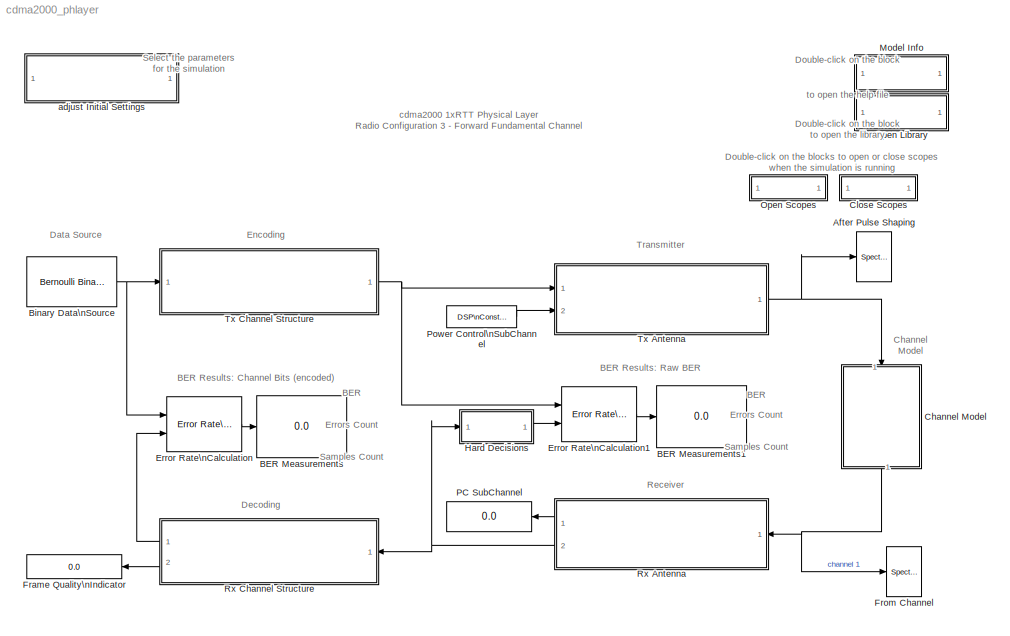
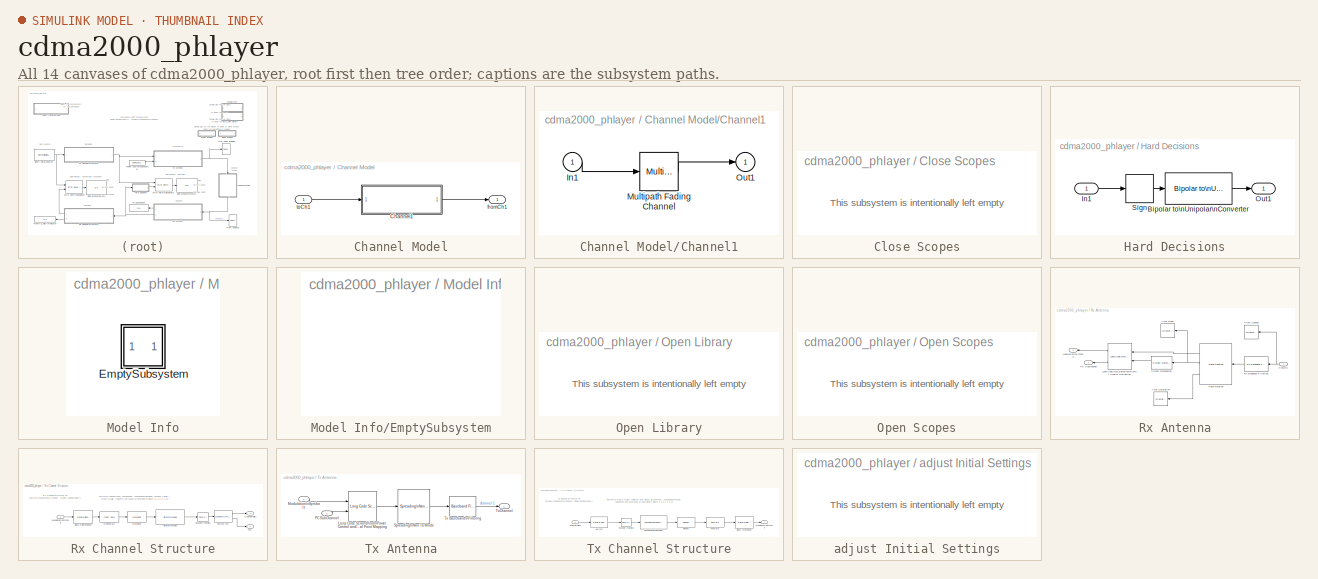
[diagram: thumbnail index - all 14 canvases of the model, root first then tree order]
MODEL cdma2000_phlayer
KIND model
CONFIG PreLoadFcn = % Create interleaver table\n% By default, numSampInt is set to 768 and radConfig to 3\ninterTable = cdma2000_inttable(768, 3);\n
BLOCK [Reference] After Pulse Shaping  REF=dspsnks4/Spectrum\nScope
  AxisGrid = on
  AxisLegend = off
  AxisProperties = off
  AxisZoom = off
  BufferSize = 256
  DisplayProperties = on
  Domain = Frequency
  FFTlength = 128
  FigPos = figposition([7    12    39    27])
  FrameNumber = off
  HorizSpan = 1
  InheritXIncr = on
  LineColors = [1 0 0]
  LineProperties = off
  Memory = off
  OpenScopeAtSimStart = off
  OpenScopeImmediately = off
  Overlap = 0
  Ports = [1]
  ScopeProperties = off
  ShowPortLabels = off
  SourceBlock = dspsnks4/Spectrum\nScope
  SourceType = Spectrum Scope
  UseBuffer = on
  XIncr = 1.0
  XLabel = Samples
  XRange = [-Fs/2...Fs/2]
  XUnits = Hertz
  YLabel = Magnitude, dB
  YMax = 14.9570095672604
  YMin = -50.9192306956859
  YUnits = dB
  inpFftLenInherit = off
  numAvg = 20
BLOCK [Display] BER Measurements
  Decimation = 1
  Ports = [1]
BLOCK [Display] BER Measurements1
  Decimation = 1
  Ports = [1]
BLOCK [Reference] Binary Data\nSource  REF=commrandsrc2/Bernoulli Binary\nGenerator
  AttributesFormatString = Samples per Frame = %<sampPerFrame>\\nSample Time = %<Ts>
  P = 0.5
  Ports = [0, 1]
  ShowPortLabels = on
  SourceBlock = commrandsrc2/Bernoulli Binary\nGenerator
  SourceType = Bernoulli Binary Generator
  Ts = 20e-3*1/172
  frameBased = on
  orient = off
  sampPerFrame = 172
  seed = 1234
BLOCK [SubSystem] Channel Model
  MaskDisplay = disp('Channel\\nModels');
  MaskIconFrame = on
  MaskIconOpaque = on
  MaskIconRotate = none
  MaskIconUnits = autoscale
  MinAlgLoopOccurrences = off
  Ports = [1, 1]
  PropExecContextAcrossSSBoundary = on
  RTWSystemCode = Auto
  TreatAsAtomicUnit = off
BLOCK [SubSystem] Channel Model/Channel1
  AttributesFormatString = %<BlockChoice>
  BlockChoice = Multipath Fading Channel
  MemberBlocks = AWGN Channel,Multipath Fading Channel,No Channel
  MinAlgLoopOccurrences = off
  Ports = [1, 1]
  PropExecContextAcrossSSBoundary = on
  RTWSystemCode = Auto
  TemplateBlock = cdma2000_lib/cdma2000 Channel Models/Configurable\nSubsystem
  TreatAsAtomicUnit = off
BLOCK [Inport] Channel Model/Channel1/In1
  IconDisplay = Port number
  LatchInput = off
BLOCK [Reference] Channel Model/Channel1/Multipath Fading Channel  REF=cdma2000_lib/cdma2000 Channel Models/Multipath Fading Channel  (lib defined in mdl_ef6182a08372)
  EcN0 = 10
  Ports = [1, 1]
  ShowPortLabels = on
  SourceBlock = cdma2000_lib/cdma2000 Channel Models/Multipath Fading Channel
  SourceType = cdma2000 Channel model: Multipath Fading Channel
  delayVector = [0    2.6e-007   5.21e-007   7.81e-007]
  dopplerFreq = 486
  gainVector = [0 -3 -6 -9]
BLOCK [Outport] Channel Model/Channel1/Out1
  BusOutputAsStruct = off
  IconDisplay = Port number
BLOCK [Outport] Channel Model/fromCh1
  BusOutputAsStruct = off
  IconDisplay = Port number
BLOCK [Inport] Channel Model/toCh1
  IconDisplay = Port number
  LatchInput = off
BLOCK [SubSystem] Close Scopes
  MaskDisplay = disp('Close Scopes');
  MaskIconFrame = on
  MaskIconOpaque = on
  MaskIconRotate = none
  MaskIconUnits = autoscale
  MinAlgLoopOccurrences = off
  OpenFcn = str1 = 'Rx Antenna';                                                                           \nstr2 = 'From Channel';                                                                         \nstr3 = 'After Rake';                                                                           \nstr5 = 'After Derotation';                                        str6 = 'After Pulse Shaping';\nstr7 = 'From...<+764ch>
  Ports = []
  PropExecContextAcrossSSBoundary = on
  RTWSystemCode = Auto
  TreatAsAtomicUnit = off
BLOCK [Reference] Error Rate\nCalculation  REF=commsink2/Error Rate\nCalculation
  AttributesFormatString = Received Delay = %<N>
  N = 2*172
  PMode = Port
  Ports = [2, 1]
  RsMode2 = off
  SourceBlock = commsink2/Error Rate\nCalculation
  SourceType = Error Rate Calculation
  WsName = ErrorVec
  cp_mode = Entire frame
  maxBits = 1e6
  numErr = 100
  st_delay = 0
  stop = off
  subframe = []
BLOCK [Reference] Error Rate\nCalculation1  REF=commsink2/Error Rate\nCalculation
  AttributesFormatString = Received Delay = %<N>
  N = 2*768
  PMode = Port
  Ports = [2, 1]
  RsMode2 = off
  SourceBlock = commsink2/Error Rate\nCalculation
  SourceType = Error Rate Calculation
  WsName = ErrorVec
  cp_mode = Entire frame
  maxBits = 1e6
  numErr = 100
  st_delay = 0
  stop = off
  subframe = []
BLOCK [Display] Frame Quality\nIndicator
  Decimation = 1
  Ports = [1]
BLOCK [Reference] From Channel  REF=dspsnks4/Spectrum\nScope
  AxisGrid = on
  AxisLegend = off
  AxisProperties = off
  AxisZoom = off
  BufferSize = 512
  DisplayProperties = on
  Domain = Frequency
  FFTlength = 128
  FigPos = figposition([49    12    39    27])
  FrameNumber = off
  HorizSpan = 1
  InheritXIncr = on
  LineColors = [1 0 0]
  LineProperties = off
  Memory = off
  OpenScopeAtSimStart = off
  OpenScopeImmediately = off
  Overlap = 0
  Ports = [1]
  ScopeProperties = off
  ShowPortLabels = off
  SourceBlock = dspsnks4/Spectrum\nScope
  SourceType = Spectrum Scope
  UseBuffer = on
  XIncr = 1.0
  XLabel = Samples
  XRange = [-Fs/2...Fs/2]
  XUnits = Hertz
  YLabel = Magnitude, dB
  YMax = 21.0980719822277
  YMin = -25.3833693734741
  YUnits = dB
  inpFftLenInherit = off
  numAvg = 2
BLOCK [SubSystem] Hard Decisions
  MaskDisplay = disp('Hard\\nDecisions');
  MaskIconFrame = on
  MaskIconOpaque = on
  MaskIconRotate = none
  MaskIconUnits = autoscale
  MinAlgLoopOccurrences = off
  Ports = [1, 1]
  PropExecContextAcrossSSBoundary = on
  RTWSystemCode = Auto
  TreatAsAtomicUnit = off
BLOCK [Reference] Hard Decisions/Bipolar to\nUnipolar\nConverter  REF=commutil2/Bipolar to\nUnipolar\nConverter
  M = 2
  Ports = [1, 1]
  ShowPortLabels = on
  SourceBlock = commutil2/Bipolar to\nUnipolar\nConverter
  SourceType = Bipolar to Unipolar Converter
  polarity = Negative
BLOCK [Inport] Hard Decisions/In1
  IconDisplay = Port number
  LatchInput = off
BLOCK [Outport] Hard Decisions/Out1
  BusOutputAsStruct = off
  IconDisplay = Port number
BLOCK [Signum] Hard Decisions/Sign
BLOCK [SubSystem] Model Info
  CopyFcn = slcm CopyBlock;
  DeleteFcn = slcm Cancel;
  InitFcn = slcm('UpdateAllCMBlocksInThisModelInit')
  LoadFcn = slcm LoadBlock;
  MaskCallbackString = ||||||||||||||||||||||||||||||
  MaskDescription = This block allows revision control information to be displayed within the model.
  MaskDisplay = text(str2num(LeftAlignmentValue), 0.5, MaskDisplayString, 'HorizontalAlignment', HorizontalTextAlignment)\n
  MaskEnableString = on,on,on,on,on,on,on,on,on,on,on,on,on,on,on,on,on,on,on,on,on,on,on,on,on,on,on,on,on,on,on
  MaskIconFrame = on
  MaskIconOpaque = on
  MaskIconRotate = none
  MaskIconUnits = normalized
  MaskPromptString = InitialSaveTempField|InitialBlockCM|BlockCM|Frame|SaveTempField|DisplayStringWithTags|MaskDisplayString|HorizontalTextAlignment|LeftAlignmentValue|SourceBlockDiagram|TagMaxNumber|CMTag1|CMTag2|CMTag3|CMTag4|CMTag5|CMTag6|CMTag7|CMTag8|CMTag9|CMTag10|CMTag11|CMTag12|CMTag13|CMTag14|CMTag15|CMTag16|CMTag17|CMTag18|CMTag19|CMTag20
  MaskSelfModifiable = on
  MaskStyleString = edit,edit,edit,edit,edit,edit,edit,edit,edit,edit,edit,edit,edit,edit,edit,edit,edit,edit,edit,edit,edit,edit,edit,edit,edit,edit,edit,edit,edit,edit,edit
  MaskTabNameString = ,,,,,,,,,,,,,,,,,,,,,,,,,,,,,,
  MaskToolTipString = on,on,on,on,on,on,on,on,on,on,on,on,on,on,on,on,on,on,on,on,on,on,on,on,on,on,on,on,on,on,on
  MaskTunableValueString = on,on,on,on,on,on,on,on,on,on,on,on,on,on,on,on,on,on,on,on,on,on,on,on,on,on,on,on,on,on,on
  MaskType = CMBlock
  MaskValueString = |None|None|on||Info|Info|Center|0.5|cdma2000_phlayer|20||||||||||||||||||||
  MaskVarAliasString = ,,,,,,,,,,,,,,,,,,,,,,,,,,,,,,
  MaskVariables = InitialSaveTempField=&1;InitialBlockCM=&2;BlockCM=&3;Frame=&4;SaveTempField=&5;DisplayStringWithTags=&6;MaskDisplayString=&7;HorizontalTextAlignment=&8;LeftAlignmentValue=&9;SourceBlockDiagram=&10;TagMaxNumber=@11;CMTag1=&12;CMTag2=&13;CMTag3=&14;CMTag4=&15;CMTag5=&16;CMTag6=&17;CMTag7=&18;CMTag8=&19;CMTag9=&20;CMTag10=&21;CMTag11=&22;CMTag12=&23;CMTag13=&24;CMTag14=&25;CMTag15=&26;CMTag16=&27;CMT...<+45ch>
  MaskVisibilityString = off,off,off,off,off,off,off,off,off,off,off,off,off,off,off,off,off,off,off,off,off,off,off,off,off,off,off,off,off,off,off
  MinAlgLoopOccurrences = off
  NameChangeFcn = slcm Rename;
  OpenFcn = commdemohelp;
  Ports = []
  PostSaveFcn = slcm('UpdateAllCMBlocksInThisModel')
  PropExecContextAcrossSSBoundary = on
  RTWSystemCode = Auto
  TreatAsAtomicUnit = off
BLOCK [SubSystem] Model Info/EmptySubsystem
  MinAlgLoopOccurrences = off
  Ports = []
  PropExecContextAcrossSSBoundary = on
  RTWSystemCode = Auto
  TreatAsAtomicUnit = off
BLOCK [SubSystem] Open Library
  MaskDisplay = disp('cdma2000\\nLibrary')
  MaskIconFrame = on
  MaskIconOpaque = on
  MaskIconRotate = none
  MaskIconUnits = autoscale
  MinAlgLoopOccurrences = off
  OpenFcn = open('cdma2000_lib.mdl');
  Ports = []
  PropExecContextAcrossSSBoundary = on
  RTWSystemCode = Auto
  ShowPortLabels = off
  TreatAsAtomicUnit = off
BLOCK [SubSystem] Open Scopes
  MaskDisplay = disp('Open Scopes');
  MaskIconFrame = on
  MaskIconOpaque = on
  MaskIconRotate = none
  MaskIconUnits = autoscale
  MinAlgLoopOccurrences = off
  OpenFcn = str1 = 'Rx Antenna';                                                      \nstr2 = 'From Channel';                                                    \nstr3 = 'After Rake';                                                      \nstr5 = 'After Derotation';                                                \nstr6 = 'After Pulse Shaping';                                             \nstr7 = 'From Channel...<+512ch>
  Ports = []
  PropExecContextAcrossSSBoundary = on
  RTWSystemCode = Auto
  TreatAsAtomicUnit = off
BLOCK [Display] PC SubChannel
  Decimation = 1
  Ports = [1]
BLOCK [Reference] Power Control\nSubChannel  REF=dspsrcs4/DSP\nConstant
  AttributesFormatString = <path>
  FramebasedOutput = on
  InterpretAs1D = off
  Ports = [0, 1]
  SampleMode = Discrete
  ShowPortLabels = on
  SourceBlock = dspsrcs4/DSP\nConstant
  SourceType = DSP Constant
  Ts = 20e-3/16
  Value = 1
  additionalParams = off
  allowOverrides = on
  continuousOutput = Sample-based
  dataType = Inherit from 'Constant value'
  discreteOutput = Frame-based
  fracBitsMode = Best precision
  framePeriod = 20e-3/16
  isSigned = on
  numFracBits = 15
  sampTime = 20e-3/16
  udDataType = sfix(16)
  wordLen = 16
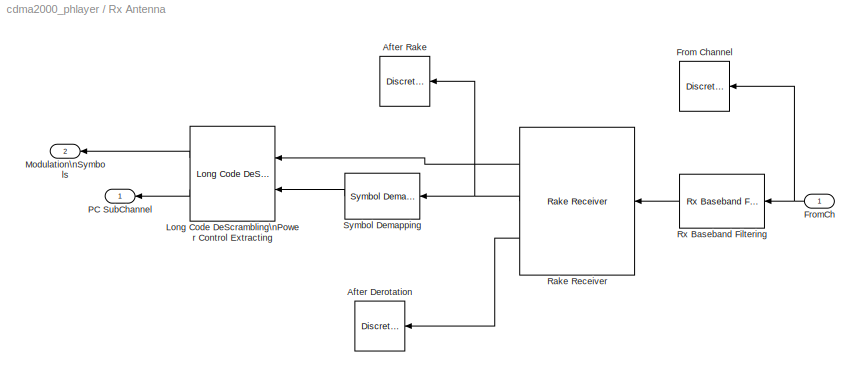
BLOCK [SubSystem] Rx Antenna
  MaskIconFrame = on
  MaskIconOpaque = on
  MaskIconRotate = none
  MaskIconUnits = autoscale
  MinAlgLoopOccurrences = off
  Ports = [1, 2]
  PropExecContextAcrossSSBoundary = on
  RTWSystemCode = Auto
  TreatAsAtomicUnit = off
BLOCK [Reference] Rx Antenna/After Derotation  REF=commsink2/Discrete-Time\nScatter Plot\nScope
  AxisGrid = on
  FigPos = figposition([36    51    30    40])
  FrameNumber = off
  LineColors = b
  LineMarkers = .
  Ports = [1]
  ShowPortLabels = on
  SourceBlock = commsink2/Discrete-Time\nScatter Plot\nScope
  SourceType = Discrete-Time Scatter Plot Scope
  Tag = ScatterPlot
  block_type_ = scatter
  fading = on
  figTitle = .
  inphaseLabel = After Derotation
  numLinesMax = 50
  numNewFrames = 20
  numTraces = 100
  offsetEye = 0
  openScopeAtSimStart = off
  render = off
  sampPerSymb = 1
  xMax = 3.46614847196624
  xMin = -3.22434444007457
  yMax = 3.37256952269922
  yMin = -3.31792338934159
BLOCK [Reference] Rx Antenna/After Rake  REF=commsink2/Discrete-Time\nScatter Plot\nScope
  AxisGrid = on
  FigPos = figposition([68    51    30    40])
  FrameNumber = off
  LineColors = [1 0 1]
  LineMarkers = .
  Ports = [1]
  ShowPortLabels = on
  SourceBlock = commsink2/Discrete-Time\nScatter Plot\nScope
  SourceType = Discrete-Time Scatter Plot Scope
  Tag = ScatterPlot
  block_type_ = scatter
  fading = on
  figTitle = .
  inphaseLabel = After Rake Receiver
  numLinesMax = 50
  numNewFrames = 40
  numTraces = 100
  offsetEye = 0
  openScopeAtSimStart = off
  render = off
  sampPerSymb = 1
  xMax = 2.7
  xMin = -2.7
  yMax = 2.7
  yMin = -2.7
BLOCK [Reference] Rx Antenna/From Channel  REF=commsink2/Discrete-Time\nScatter Plot\nScope
  AxisGrid = on
  FigPos = figposition([4    51    30    40])
  FrameNumber = off
  LineColors = [1 0 1]
  LineMarkers = .
  Ports = [1]
  ShowPortLabels = on
  SourceBlock = commsink2/Discrete-Time\nScatter Plot\nScope
  SourceType = Discrete-Time Scatter Plot Scope
  Tag = ScatterPlot
  block_type_ = scatter
  fading = on
  figTitle = .
  inphaseLabel = From Channel
  numLinesMax = 50
  numNewFrames = 2000
  numTraces = 3000
  offsetEye = 0
  openScopeAtSimStart = off
  render = off
  sampPerSymb = 1
  xMax = 2.7
  xMin = -2.7
  yMax = 2.7
  yMin = -2.7
BLOCK [Inport] Rx Antenna/FromCh
  IconDisplay = Port number
  LatchInput = off
BLOCK [Reference] Rx Antenna/Long Code DeScrambling\nPower Control Extracting  REF=cdma2000_lib/cdma2000 Receiver/Long Code DeScrambling\nPower Control Extracting  (lib defined in mdl_ef6182a08372)
  Ports = [2, 2]
  ShowPortLabels = on
  SourceBlock = cdma2000_lib/cdma2000 Receiver/Long Code DeScrambling\nPower Control Extracting
  SourceType = Long Code DeScrambling
  TxDivMode = Non-TD
  gateRateMask = 1/4
  longCScrMask = On
  nFrameMask = 1
  numSamp = 768
  plcMask = [1 1 0 0 0 1  1  0  0  1  1  0  1  0  1  1  1  1  0  1  1  0  0  1  0  1  1  1  0  0  1  0  1  0  1  1  1  1  0  1  1  0]
  radConfig = Radio Configuration 3
BLOCK [Outport] Rx Antenna/Modulation\nSymbols
  BusOutputAsStruct = off
  IconDisplay = Port number
  Port = 2
BLOCK [Outport] Rx Antenna/PC SubChannel
  BusOutputAsStruct = off
  IconDisplay = Port number
BLOCK [Reference] Rx Antenna/Rake Receiver  REF=cdma2000_lib/cdma2000 Receiver/Rake Receiver  (lib defined in mdl_ef6182a08372)
  Ports = [1, 3]
  ShowPortLabels = on
  SourceBlock = cdma2000_lib/cdma2000 Receiver/Rake Receiver
  SourceType = Rake Receiver
  fingerEnables = [1  1  1  1]
  fingerPhases = [0  1  3  4]
  numTapsChEst = 11
  numTapsRRC = 48
  overSampling = 4
  pnOffset = 1
  qof_idx = 2
  trChCode = 23
  walshLength = 64
BLOCK [Reference] Rx Antenna/Rx Baseband Filtering  REF=cdma2000_lib/cdma2000 Receiver/Rx Baseband Filtering  (lib defined in mdl_ef6182a08372)
  Ports = [1, 1]
  ShowPortLabels = on
  SourceBlock = cdma2000_lib/cdma2000 Receiver/Rx Baseband Filtering
  SourceType = Unknown
BLOCK [Reference] Rx Antenna/Symbol Demapping  REF=cdma2000_lib/cdma2000 Receiver/Symbol Demapping  (lib defined in mdl_ef6182a08372)
  Ports = [1, 1]
  ShowPortLabels = on
  SourceBlock = cdma2000_lib/cdma2000 Receiver/Symbol Demapping
  SourceType = Unknown
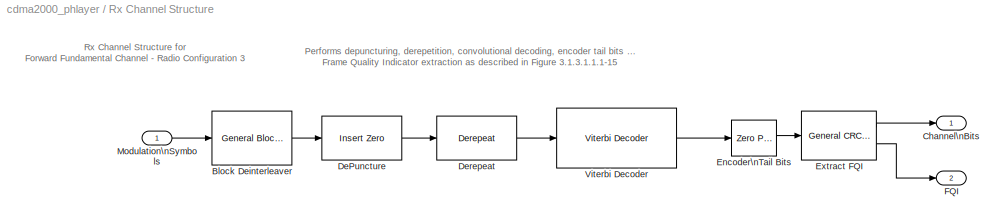
BLOCK [SubSystem] Rx Channel Structure
  MaskIconFrame = on
  MaskIconOpaque = on
  MaskIconRotate = none
  MaskIconUnits = autoscale
  MinAlgLoopOccurrences = off
  Ports = [1, 2]
  PropExecContextAcrossSSBoundary = on
  RTWSystemCode = Auto
  TreatAsAtomicUnit = off
BLOCK [Reference] Rx Channel Structure/Block Deinterleaver  REF=commblkintrlv2/General Block\nDeinterleaver
  Ports = [1, 1]
  SourceBlock = commblkintrlv2/General Block\nDeinterleaver
  SourceType = General Block Deinterleaver
  elements = interTable
BLOCK [Outport] Rx Channel Structure/Channel\nBits
  BusOutputAsStruct = off
  IconDisplay = Port number
BLOCK [Reference] Rx Channel Structure/DePuncture  REF=commsequence2/Insert Zero
  Ports = [1, 1]
  SourceBlock = commsequence2/Insert Zero
  SourceType = Insert Zero
  insertZeroVector = [1]
BLOCK [Reference] Rx Channel Structure/Derepeat  REF=commsequence2/Derepeat
  N = 1
  Ports = [1, 1]
  SourceBlock = commsequence2/Derepeat
  SourceType = Derepeat
  ic = 0
  mode = Maintain input frame rate
BLOCK [Reference] Rx Channel Structure/Encoder\nTail Bits  REF=dspsigops/Zero Pad
  Ports = [1, 1]
  SourceBlock = dspsigops/Zero Pad
  SourceType = Zero Pad
  numOutCols = 1
  numOutRows = 172 + 12
  padNumOutColsSpecMethod = User-specified
  padNumOutRowsSpecMethod = User-specified
  padSigAt = End
  trunc_flag = None
  zpadAlong = Columns
BLOCK [Reference] Rx Channel Structure/Extract FQI  REF=commcrc2/General CRC\nSyndrome\nDetector
  Ports = [1, 2]
  SourceBlock = commcrc2/General CRC\nSyndrome\nDetector
  SourceType = General CRC Syndrome Detector
  genPoly = [12 11 10 9 8 4 1 0]
  iniStates = [1]
  numChecksums = 1
BLOCK [Outport] Rx Channel Structure/FQI
  BusOutputAsStruct = off
  IconDisplay = Port number
  Port = 2
BLOCK [Inport] Rx Channel Structure/Modulation\nSymbols
  IconDisplay = Port number
  LatchInput = off
BLOCK [Reference] Rx Channel Structure/Viterbi Decoder  REF=commcnvcod2/Viterbi Decoder
  Ports = [1, 1]
  SourceBlock = commcnvcod2/Viterbi Decoder
  SourceType = Viterbi Decoder
  dectype = Unquantized
  nsdecb = 4
  opmode = Truncated
  reset = off
  tbdepth = 30
  trellis = poly2trellis(9, [765 671 513 473])
BLOCK [SubSystem] Tx Antenna
  MinAlgLoopOccurrences = off
  Ports = [2, 1]
  PropExecContextAcrossSSBoundary = on
  RTWSystemCode = Auto
  TreatAsAtomicUnit = off
BLOCK [Reference] Tx Antenna/Long Code Scrambling\nPower Control and\nSignal Point Mapping  REF=cdma2000_lib/cdma2000 Transmitter/Long Code Scrambling\nPower Control and\nSignal Point Mapping  (lib defined in mdl_ef6182a08372)
  Ports = [2, 1]
  ShowPortLabels = on
  SourceBlock = cdma2000_lib/cdma2000 Transmitter/Long Code Scrambling\nPower Control and\nSignal Point Mapping
  SourceType = Long Code Scrambling
  TxDivMode = Non-TD
  gateRateMask = 1/4
  longCScrMask = On
  nFrameMask = 1
  numSamp = 768
  plcMask = [1 1 0 0 0 1  1  0  0  1  1  0  1  0  1  1  1  1  0  1  1  0  0  1  0  1  1  1  0  0  1  0  1  0  1  1  1  1  0  1  1  0]
  radConfig = Radio Configuration 3
BLOCK [Inport] Tx Antenna/Modulation\nSymbols
  IconDisplay = Port number
  LatchInput = off
BLOCK [Inport] Tx Antenna/PC SubChannel
  IconDisplay = Port number
  LatchInput = off
  Port = 2
BLOCK [Reference] Tx Antenna/Spreading\nNon-TD Mode  REF=cdma2000_lib/cdma2000 Transmitter/Spreading\nNon-TD Mode  (lib defined in mdl_ef6182a08372)
  Ports = [1, 1]
  ShowPortLabels = on
  SourceBlock = cdma2000_lib/cdma2000 Transmitter/Spreading\nNon-TD Mode
  SourceType = Spreading Non-TD Mode
  pnOffset = 1
  qof_idx = 2
  trChCode = 23
  walshLength = 64
BLOCK [Outport] Tx Antenna/ToChannel
  BusOutputAsStruct = off
  IconDisplay = Port number
BLOCK [Reference] Tx Antenna/Tx Baseband\nFiltering  REF=cdma2000_lib/cdma2000 Transmitter/Baseband Filtering  (lib defined in mdl_ef6182a08372)
  Ports = [1, 1]
  ShowPortLabels = on
  SourceBlock = cdma2000_lib/cdma2000 Transmitter/Baseband Filtering
  SourceType = Unknown
BLOCK [SubSystem] Tx Channel Structure
  MaskDisplay = port_label('output',1,'Modulation Symbols');\nport_label('input',1,'Channel Bits');
  MaskIconFrame = on
  MaskIconOpaque = on
  MaskIconRotate = none
  MaskIconUnits = autoscale
  MinAlgLoopOccurrences = off
  Ports = [1, 1]
  PropExecContextAcrossSSBoundary = on
  RTWSystemCode = Auto
  TreatAsAtomicUnit = off
BLOCK [Reference] Tx Channel Structure/Add FQI  REF=commcrc2/General CRC\nGenerator
  Ports = [1, 1]
  SourceBlock = commcrc2/General CRC\nGenerator
  SourceType = General CRC Generator
  genPoly = [12 11 10 9 8 4 1 0]
  iniStates = [1]
  numChecksums = 1
BLOCK [Reference] Tx Channel Structure/Block Interleaver  REF=commblkintrlv2/General Block\nInterleaver
  Ports = [1, 1]
  SourceBlock = commblkintrlv2/General Block\nInterleaver
  SourceType = General Block Interleaver
  elements = interTable
BLOCK [Inport] Tx Channel Structure/Channel\nBits
  IconDisplay = Port number
  LatchInput = off
BLOCK [Reference] Tx Channel Structure/Convolutional\nEncoder  REF=commcnvcod2/Convolutional\nEncoder
  Ports = [1, 1]
  SourceBlock = commcnvcod2/Convolutional\nEncoder
  SourceType = Convolutional Encoder
  reset = On each frame
  trellis = poly2trellis(9, [765 671 513 473])
BLOCK [Reference] Tx Channel Structure/Encoder\nTail Bits  REF=dspsigops/Zero Pad
  Ports = [1, 1]
  SourceBlock = dspsigops/Zero Pad
  SourceType = Zero Pad
  numOutCols = 1
  numOutRows = 172 + 12 + 8
  padNumOutColsSpecMethod = User-specified
  padNumOutRowsSpecMethod = User-specified
  padSigAt = End
  trunc_flag = None
  zpadAlong = Columns
BLOCK [Outport] Tx Channel Structure/Modulation\nSymbols
  BusOutputAsStruct = off
  IconDisplay = Port number
BLOCK [Reference] Tx Channel Structure/Puncture  REF=commsequence2/Puncture
  Ports = [1, 1]
  SourceBlock = commsequence2/Puncture
  SourceType = Puncture
  punctureVector = [1]
BLOCK [Reference] Tx Channel Structure/Repeat  REF=dspsigops/Repeat
  N = 1
  Ports = [1, 1]
  SourceBlock = dspsigops/Repeat
  SourceType = Repeat
  ic = 0
  mode = Maintain input frame rate
BLOCK [SubSystem] adjust Initial Settings
  AttributesFormatString = %<chType>\\n%<radConfig>\\n%<dataRates>\\n%<txDivMode>\\n%<chMode1>\\n
  MaskCallbackString = ||cdma2000_initmask(gcb,'cbDataRates');|cdma2000_initmask(gcb,'cbNFrameMask');|cdma2000_initmask(gcb,'cbLongCScrMask');|cdma2000_initmask(gcb,'cbGateRateMask');|cdma2000_initmask(gcb,'cbTrChCode');|cdma2000_initmask(gcb,'cbPnOffset');|cdma2000_initmask(gcb,'cbQof_idx');|cdma2000_initmask(gcb,'cbTxDivMode');|cdma2000_initmask(gcb,'cbChMode1');||||
  MaskDescription = \nSelect the parameters for the cdma200 application example.\n\nSome options have been disabled because they are not supported in this example. These options are intentionally displayed to exemplify possible ways to expand the model.
  MaskDisplay = disp('cdma2000:\\nInitial Settings');
  MaskEnableString = off,off,on,off,on,on,on,on,on,off,on,on,on,on,on
  MaskHelp = eval('commdemohelp;');
  MaskIconFrame = on
  MaskIconOpaque = on
  MaskIconRotate = none
  MaskIconUnits = autoscale
  MaskInitialization = eStr = cdma2000_initmask(gcb, 'init');\nif(~isempty(eStr.emsg))\nerrordlg(eStr.emsg);\nend\n\n
  MaskPromptString = Channel Type|Radio Configuration|Data Rates:|Length of frame in multiples of 20 ms (n):|Long Code Scrambling:|Power Control SubChannel Insertion Rate:|Forward Traffic Channel Spreading Code Index:|Forward Traffic Channel PN Offset:|Quasi-orthogonal function index for F-DTCH:|Transmit Diversity Mode:|Channel Model:|EcN0 (in dB):|Maximum Doppler Frequency shift (in Hz):|Multipath Profile - Delay Vec...<+46ch>
  MaskStyleString = popup(Forward Fundamental),popup(Radio Configuration 3),popup(1.5 Kbps|2.7 Kbps|4.8 Kbps|9.6 Kbps),popup(1|2|4),popup(On|Off),popup(Non Power Control|1|1/2|1/4),edit,edit,popup(0|1|2|3),popup(Non-TD),popup(No Channel|AWGN Channel|Multipath Fading Channel),edit,edit,edit,edit
  MaskTabNameString = ,,,,,,,,,,,,,,
  MaskToolTipString = on,on,on,on,on,on,on,on,on,on,on,on,on,on,on
  MaskTunableValueString = off,off,off,off,off,off,off,off,off,off,off,off,off,off,off
  MaskType = cdma2000 Initial Settings
  MaskValueString = Forward Fundamental|Radio Configuration 3|9.6 Kbps|1|On|1/4|23|1|2|Non-TD|Multipath Fading Channel|10|486|[0 260e-9 521e-9 781e-9]|[0 -3 -6 -9]
  MaskVarAliasString = ,,,,,,,,,,,,,,
  MaskVariables = chType=@1;radConfig=@2;dataRates=@3;nFrameMask=@4;longCScrMask=@5;gateRateMask=@6;trChCode=@7;pnOffset=@8;qof_idx=@9;TxDivMode=@10;chMode1=@11;EcN0=@12;dopplerFreq=@13;delayVector=@14;gainVector=@15;
  MaskVisibilityString = on,on,on,on,on,on,on,on,on,on,on,on,on,on,on
  MinAlgLoopOccurrences = off
  Ports = []
  PropExecContextAcrossSSBoundary = on
  RTWSystemCode = Auto
  TreatAsAtomicUnit = off
ANNOTATION (root): BER
ANNOTATION (root): BER Results: Channel Bits (encoded)
ANNOTATION (root): BER Results: Raw BER
ANNOTATION (root): Channel\nModel
ANNOTATION (root): Data Source
ANNOTATION (root): Decoding
ANNOTATION (root): Double-click on the block\nto open the help file
ANNOTATION (root): Double-click on the block\nto open the library
ANNOTATION (root): Double-click on the blocks to open or close scopes\nwhen the simulation is running
ANNOTATION (root): Encoding
ANNOTATION (root): Errors Count
ANNOTATION (root): Receiver
ANNOTATION (root): Samples Count
ANNOTATION (root): Select the parameters\nfor the simulation
ANNOTATION (root): Transmitter
ANNOTATION (root): cdma2000 1xRTT Physical Layer\nRadio Configuration 3 - Forward Fundamental Channel
ANNOTATION Close Scopes: This subsystem is intentionally left empty
ANNOTATION Open Library: This subsystem is intentionally left empty
ANNOTATION Open Scopes: This subsystem is intentionally left empty
ANNOTATION Rx Channel Structure: Performs depuncturing, derepetition, convolutional decoding, encoder tail bits detachment and computes\nFrame Quality Indicator extraction as described in Figure 3.1.3.1.1.1-15
ANNOTATION Rx Channel Structure: Rx Channel Structure for \nForward Fundamental Channel - Radio Configuration 3
ANNOTATION Tx Channel Structure: Performs Frame Quality Indicator and tail bits attachment, convolutional encoding with rate 1/4 constraint length 9,\nrepeatition and puncturing as described in Figure 3.1.3.1.1.1-15
ANNOTATION Tx Channel Structure: Tx Channel Structure for \nForward Fundamental Channel - Radio Configuration 3
ANNOTATION adjust Initial Settings: This subsystem is intentionally left empty
NET Binary Data\nSource:1 -> Error Rate\nCalculation:1, Tx Channel Structure:1
LINE Channel Model/Channel1/In1:1 -> Channel Model/Channel1/Multipath Fading Channel:1
LINE Channel Model/Channel1/Multipath Fading Channel:1 -> Channel Model/Channel1/Out1:1
LINE Channel Model/Channel1:1 -> Channel Model/fromCh1:1
LINE Channel Model/toCh1:1 -> Channel Model/Channel1:1
NET Channel Model:1 -> From Channel:1, Rx Antenna:1
LINE Error Rate\nCalculation1:1 -> BER Measurements1:1
LINE Error Rate\nCalculation:1 -> BER Measurements:1
LINE Hard Decisions/Bipolar to\nUnipolar\nConverter:1 -> Hard Decisions/Out1:1
LINE Hard Decisions/In1:1 -> Hard Decisions/Sign:1
LINE Hard Decisions/Sign:1 -> Hard Decisions/Bipolar to\nUnipolar\nConverter:1
LINE Hard Decisions:1 -> Error Rate\nCalculation1:2
LINE Power Control\nSubChannel:1 -> Tx Antenna:2
NET Rx Antenna/FromCh:1 -> Rx Antenna/From Channel:1, Rx Antenna/Rx Baseband Filtering:1
LINE Rx Antenna/Long Code DeScrambling\nPower Control Extracting:1 -> Rx Antenna/Modulation\nSymbols:1
LINE Rx Antenna/Long Code DeScrambling\nPower Control Extracting:2 -> Rx Antenna/PC SubChannel:1
LINE Rx Antenna/Rake Receiver:1 -> Rx Antenna/Long Code DeScrambling\nPower Control Extracting:1
NET Rx Antenna/Rake Receiver:2 -> Rx Antenna/After Rake:1, Rx Antenna/Symbol Demapping:1
LINE Rx Antenna/Rake Receiver:3 -> Rx Antenna/After Derotation:1
LINE Rx Antenna/Rx Baseband Filtering:1 -> Rx Antenna/Rake Receiver:1
LINE Rx Antenna/Symbol Demapping:1 -> Rx Antenna/Long Code DeScrambling\nPower Control Extracting:2
LINE Rx Antenna:1 -> PC SubChannel:1
NET Rx Antenna:2 -> Hard Decisions:1, Rx Channel Structure:1
LINE Rx Channel Structure/Block Deinterleaver:1 -> Rx Channel Structure/DePuncture:1
LINE Rx Channel Structure/DePuncture:1 -> Rx Channel Structure/Derepeat:1
LINE Rx Channel Structure/Derepeat:1 -> Rx Channel Structure/Viterbi Decoder:1
LINE Rx Channel Structure/Encoder\nTail Bits:1 -> Rx Channel Structure/Extract FQI:1
LINE Rx Channel Structure/Extract FQI:1 -> Rx Channel Structure/Channel\nBits:1
LINE Rx Channel Structure/Extract FQI:2 -> Rx Channel Structure/FQI:1
LINE Rx Channel Structure/Modulation\nSymbols:1 -> Rx Channel Structure/Block Deinterleaver:1
LINE Rx Channel Structure/Viterbi Decoder:1 -> Rx Channel Structure/Encoder\nTail Bits:1
LINE Rx Channel Structure:1 -> Error Rate\nCalculation:2
LINE Rx Channel Structure:2 -> Frame Quality\nIndicator:1
LINE Tx Antenna/Long Code Scrambling\nPower Control and\nSignal Point Mapping:1 -> Tx Antenna/Spreading\nNon-TD Mode:1
LINE Tx Antenna/Modulation\nSymbols:1 -> Tx Antenna/Long Code Scrambling\nPower Control and\nSignal Point Mapping:1
LINE Tx Antenna/PC SubChannel:1 -> Tx Antenna/Long Code Scrambling\nPower Control and\nSignal Point Mapping:2
LINE Tx Antenna/Spreading\nNon-TD Mode:1 -> Tx Antenna/Tx Baseband\nFiltering:1
LINE Tx Antenna/Tx Baseband\nFiltering:1 -> Tx Antenna/ToChannel:1
NET Tx Antenna:1 -> After Pulse Shaping:1, Channel Model:1
LINE Tx Channel Structure/Add FQI:1 -> Tx Channel Structure/Encoder\nTail Bits:1
LINE Tx Channel Structure/Block Interleaver:1 -> Tx Channel Structure/Modulation\nSymbols:1
LINE Tx Channel Structure/Channel\nBits:1 -> Tx Channel Structure/Add FQI:1
LINE Tx Channel Structure/Convolutional\nEncoder:1 -> Tx Channel Structure/Repeat:1
LINE Tx Channel Structure/Encoder\nTail Bits:1 -> Tx Channel Structure/Convolutional\nEncoder:1
LINE Tx Channel Structure/Puncture:1 -> Tx Channel Structure/Block Interleaver:1
LINE Tx Channel Structure/Repeat:1 -> Tx Channel Structure/Puncture:1
NET Tx Channel Structure:1 -> Error Rate\nCalculation1:1, Tx Antenna:1
note: NET lines group one-source signal fan-out (src -> all destinations, sorted); 1:1 wires keep LINE
note: 1 file-system path scrubbed to <path> (not preserved elsewhere — flat text is the only slx artifact)
